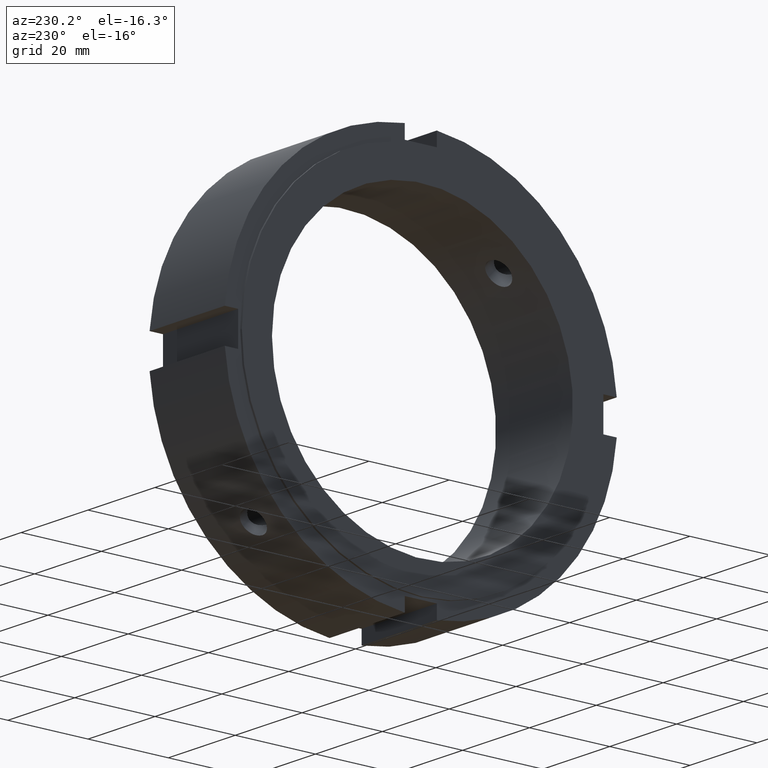
[diagram: clean part render]
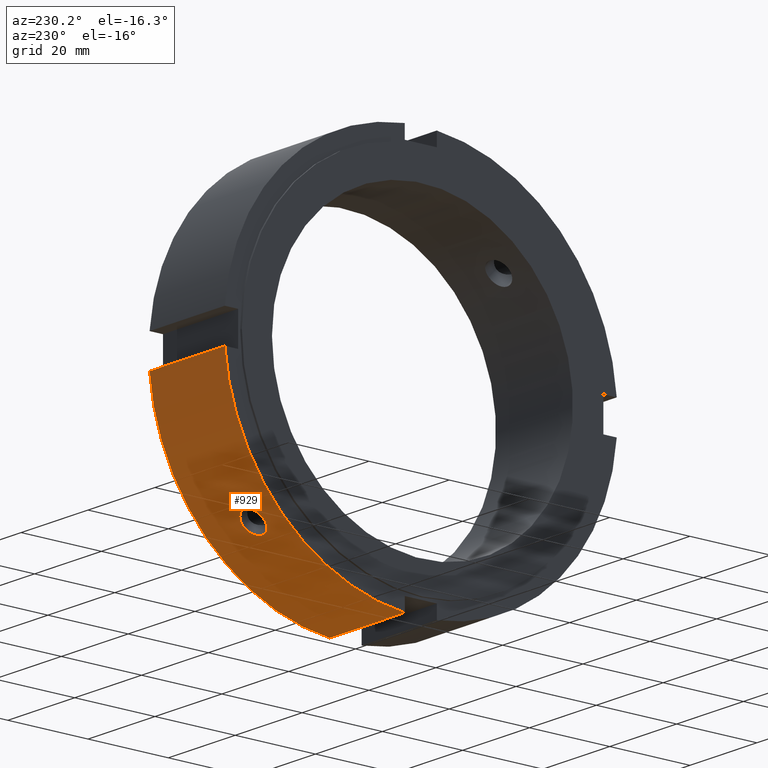
[diagram: same view with one face highlighted and labeled with its STEP entity id]
A machine part, auxiliary view. The second image highlights one B-rep face of the part: STEP entity #929.
In plain terms, the highlighted cylindrical surface (partial cylindrical patch) has radius 49 mm, axis along (1, 0, 0).
Its self-contained STEP definition (entity closure, byte-faithful):
#439=CARTESIAN_POINT('',(8.999999999999988,32.386791977377072,-36.770854020733658));
#440=VERTEX_POINT('',#439);
#441=CARTESIAN_POINT('',(8.999999999999988,32.386791977377072,-36.770854020733658));
#442=CARTESIAN_POINT('',(9.389354572250868,32.386791977377072,-36.770854020733658));
#443=CARTESIAN_POINT('',(9.804590391881417,32.445455339162308,-36.719443632457498));
#444=CARTESIAN_POINT('',(10.568335530612528,32.682281882753031,-36.508814877172128));
#445=CARTESIAN_POINT('',(10.916853679494567,32.860251959384222,-36.349411488758207));
#446=CARTESIAN_POINT('',(11.467208214654224,33.266838003564118,-35.977678685201781));
#447=CARTESIAN_POINT('',(11.705767393558911,33.522552829232673,-35.740514323406579));
#448=CARTESIAN_POINT('',(12.022166161776095,34.075682689198608,-35.213545143227869));
#449=CARTESIAN_POINT('',(12.099999999999987,34.372917169098812,-34.923547387182865));
#450=CARTESIAN_POINT('',(12.099999999999991,34.923547387182865,-34.372917169098805));
#451=CARTESIAN_POINT('',(12.022166161776095,35.213545143227869,-34.075682689198608));
#452=CARTESIAN_POINT('',(11.705767393558922,35.740514323406572,-33.522552829232673));
#453=CARTESIAN_POINT('',(11.467208214654224,35.977678685201766,-33.266838003564125));
#454=CARTESIAN_POINT('',(10.916853679494572,36.349411488758207,-32.860251959384222));
#455=CARTESIAN_POINT('',(10.568335530612529,36.508814877172128,-32.682281882753031));
#456=CARTESIAN_POINT('',(9.804590391881419,36.719443632457498,-32.445455339162301));
#457=CARTESIAN_POINT('',(9.389354572250872,36.770854020733665,-32.386791977377072));
#458=CARTESIAN_POINT('',(8.610645427749105,36.770854020733665,-32.386791977377072));
#459=CARTESIAN_POINT('',(8.195409608118554,36.719443632457505,-32.445455339162301));
#460=CARTESIAN_POINT('',(7.431664469387443,36.508814877172128,-32.682281882753031));
#461=CARTESIAN_POINT('',(7.083146320505405,36.349411488758207,-32.860251959384222));
#462=CARTESIAN_POINT('',(6.532791785345751,35.977678685201766,-33.266838003564125));
#463=CARTESIAN_POINT('',(6.294232606441053,35.740514323406572,-33.522552829232673));
#464=CARTESIAN_POINT('',(5.977833838223878,35.213545143227869,-34.075682689198608));
#465=CARTESIAN_POINT('',(5.899999999999985,34.923547387182865,-34.372917169098805));
#466=CARTESIAN_POINT('',(5.89999999999999,34.372917169098812,-34.923547387182865));
#467=CARTESIAN_POINT('',(5.977833838223884,34.075682689198608,-35.213545143227869));
#468=CARTESIAN_POINT('',(6.294232606441065,33.522552829232673,-35.740514323406579));
#469=CARTESIAN_POINT('',(6.532791785345751,33.266838003564118,-35.977678685201781));
#470=CARTESIAN_POINT('',(7.083146320505409,32.860251959384222,-36.349411488758207));
#471=CARTESIAN_POINT('',(7.431664469387453,32.682281882753031,-36.508814877172128));
#472=CARTESIAN_POINT('',(8.195409608118563,32.445455339162308,-36.719443632457498));
#473=CARTESIAN_POINT('',(8.610645427749107,32.386791977377072,-36.770854020733658));
#474=CARTESIAN_POINT('',(8.999999999999988,32.386791977377072,-36.770854020733658));
#475=B_SPLINE_CURVE_WITH_KNOTS('',3,(#441,#442,#443,#444,#445,#446,#447,#448,#449,#450,#451,#452,#453,#454,#455,#456,#457,#458,#459,#460,#461,#462,#463,#464,#465,#466,#467,#468,#469,#470,#471,#472,#473,#474),.UNSPECIFIED.,.T.,.U.,(4,2,2,2,2,2,2,2,2,2,2,2,2,2,2,2,4),(0.0,0.116806371675264,0.233612743350529,0.350419051690568,0.467225360030607,0.584031668370645,0.700837976710684,0.817644348385949,0.934450720061214,1.051257091736479,1.168063463411743,1.284869771751782,1.40167608009182,1.518482388431859,1.635288696771899,1.752095068447163,1.868901440122427),.UNSPECIFIED.);
#476=EDGE_CURVE('',#440,#440,#475,.T.);
#573=CARTESIAN_POINT('',(0.499999999999989,3.999999999999989,-48.836461788299125));
#574=VERTEX_POINT('',#573);
#583=CARTESIAN_POINT('',(22.999999999999989,3.999999999999989,-48.836461788299125));
#584=VERTEX_POINT('',#583);
#585=CARTESIAN_POINT('',(22.999999999999989,3.999999999999989,-48.836461788299125));
#586=DIRECTION('',(-1.0,0.0,0.0));
#587=VECTOR('',#586,22.5);
#588=LINE('',#585,#587);
#589=EDGE_CURVE('',#584,#574,#588,.T.);
#894=CARTESIAN_POINT('',(11.749999999999989,0.0,0.0));
#895=DIRECTION('',(1.0,0.0,0.0));
#896=DIRECTION('',(0.0,1.0,0.0));
#897=AXIS2_PLACEMENT_3D('',#894,#895,#896);
#898=CYLINDRICAL_SURFACE('',#897,49.0);
#899=ORIENTED_EDGE('',*,*,#589,.T.);
#900=CARTESIAN_POINT('',(0.499999999999989,48.836461788299125,-3.999999999999998));
#901=VERTEX_POINT('',#900);
#902=CARTESIAN_POINT('',(0.499999999999989,0.0,0.0));
#903=DIRECTION('',(1.0,0.0,0.0));
#904=DIRECTION('',(0.0,1.0,0.0));
#905=AXIS2_PLACEMENT_3D('',#902,#903,#904);
#906=CIRCLE('',#905,49.0);
#907=EDGE_CURVE('',#574,#901,#906,.T.);
#908=ORIENTED_EDGE('',*,*,#907,.T.);
#909=CARTESIAN_POINT('',(22.999999999999989,48.836461788299125,-3.999999999999998));
#910=VERTEX_POINT('',#909);
#911=CARTESIAN_POINT('',(0.499999999999989,48.836461788299125,-3.999999999999998));
#912=DIRECTION('',(1.0,0.0,0.0));
#913=VECTOR('',#912,22.5);
#914=LINE('',#911,#913);
#915=EDGE_CURVE('',#901,#910,#914,.T.);
#916=ORIENTED_EDGE('',*,*,#915,.T.);
#917=CARTESIAN_POINT('',(22.999999999999989,0.0,0.0));
#918=DIRECTION('',(1.0,0.0,0.0));
#919=DIRECTION('',(0.0,1.0,0.0));
#920=AXIS2_PLACEMENT_3D('',#917,#918,#919);
#921=CIRCLE('',#920,49.0);
#922=EDGE_CURVE('',#584,#910,#921,.T.);
#923=ORIENTED_EDGE('',*,*,#922,.F.);
#924=EDGE_LOOP('',(#899,#908,#916,#923));
#925=FACE_OUTER_BOUND('',#924,.T.);
#926=ORIENTED_EDGE('',*,*,#476,.T.);
#927=EDGE_LOOP('',(#926));
#928=FACE_BOUND('',#927,.T.);
#929=ADVANCED_FACE('',(#925,#928),#898,.T.);